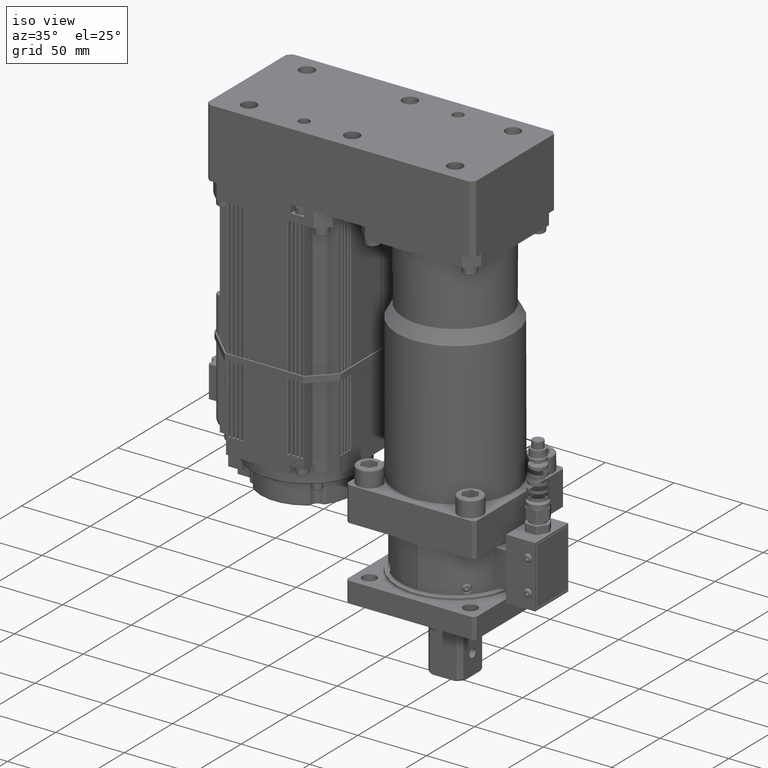
[diagram: clean part render]
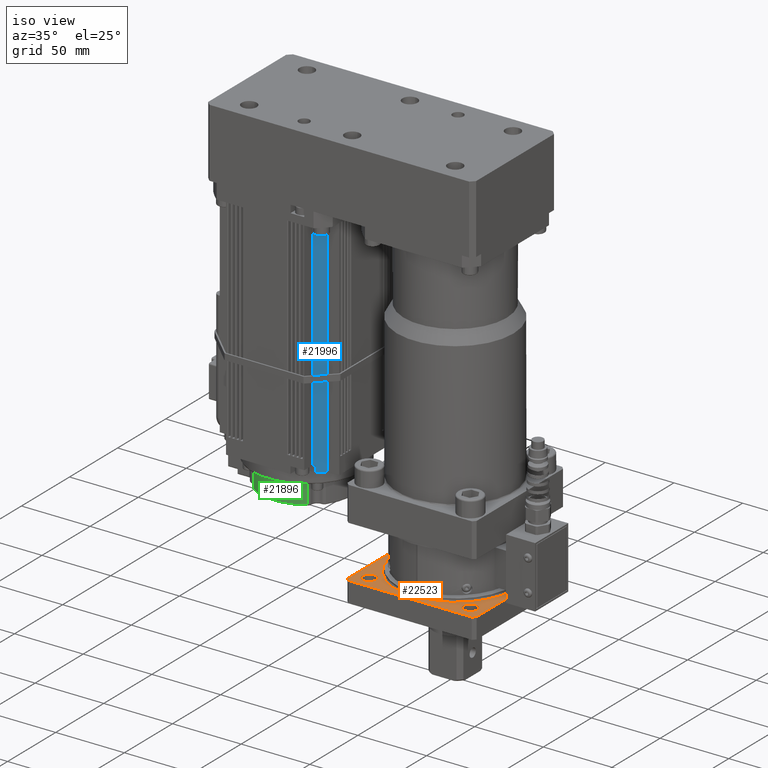
[diagram: same view with three faces highlighted in distinct colors, each labeled with its STEP entity id]
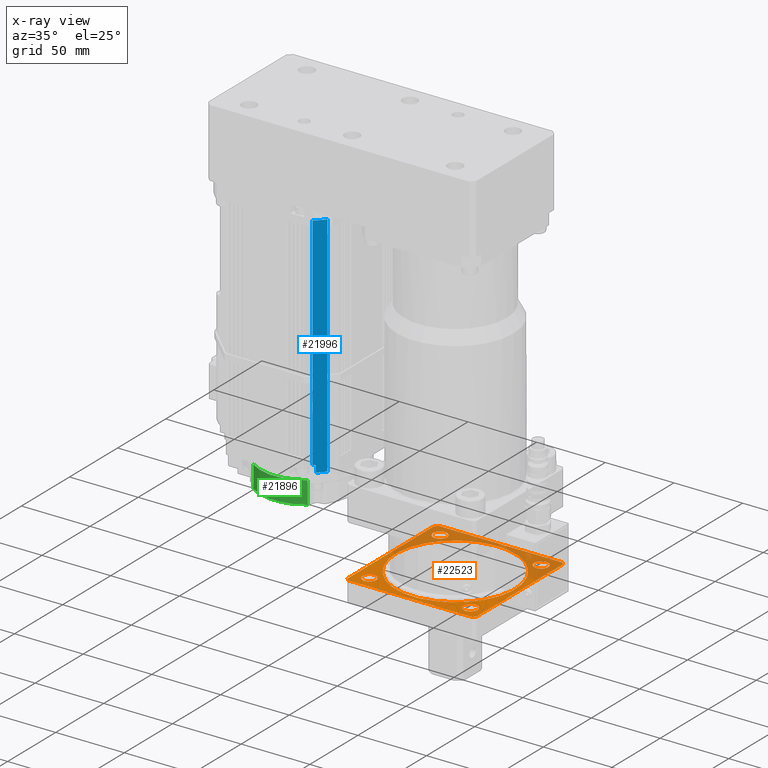
[diagram: x-ray of the same camera — body ghosted, the three highlighted faces saturated]
A machine part, iso view with three faces highlighted in distinct colors.
The next image is the same camera in x-ray (body ghosted, the three faces saturated) — at least one of them is partly hidden behind the body in this view.
Their STEP definitions:

[orange] entity #22523 — the highlighted planar face has unit normal (-0, -0, 1).
#387=FACE_BOUND('',#7877,.T.);
#388=FACE_BOUND('',#7878,.T.);
#389=FACE_BOUND('',#7879,.T.);
#390=FACE_BOUND('',#7880,.T.);
#391=FACE_BOUND('',#7881,.T.);
#1055=PLANE('',#24587);
#3061=LINE('',#37342,#5035);
#3062=LINE('',#37346,#5036);
#3063=LINE('',#37350,#5037);
#3064=LINE('',#37354,#5038);
#5035=VECTOR('',#30438,10.);
#5036=VECTOR('',#30441,10.);
#5037=VECTOR('',#30444,10.);
#5038=VECTOR('',#30447,10.);
#6558=FACE_OUTER_BOUND('',#7876,.T.);
#7876=EDGE_LOOP('',(#19654,#19655,#19656,#19657,#19658,#19659,#19660,#19661));
#7877=EDGE_LOOP('',(#19662));
#7878=EDGE_LOOP('',(#19663));
#7879=EDGE_LOOP('',(#19664));
#7880=EDGE_LOOP('',(#19665));
#7881=EDGE_LOOP('',(#19666));
#8863=CIRCLE('',#24583,43.5);
#8866=CIRCLE('',#24588,65.);
#8867=CIRCLE('',#24589,65.);
#8868=CIRCLE('',#24590,65.);
#8869=CIRCLE('',#24591,65.);
#8870=CIRCLE('',#24592,5.125);
#8871=CIRCLE('',#24593,5.125);
#8872=CIRCLE('',#24594,5.125);
#8873=CIRCLE('',#24595,5.125);
#10784=VERTEX_POINT('',#37331);
#10786=VERTEX_POINT('',#37340);
#10787=VERTEX_POINT('',#37341);
#10788=VERTEX_POINT('',#37343);
#10789=VERTEX_POINT('',#37345);
#10790=VERTEX_POINT('',#37347);
#10791=VERTEX_POINT('',#37349);
#10792=VERTEX_POINT('',#37351);
#10793=VERTEX_POINT('',#37353);
#10794=VERTEX_POINT('',#37356);
#10795=VERTEX_POINT('',#37358);
#10796=VERTEX_POINT('',#37360);
#10797=VERTEX_POINT('',#37362);
#13781=EDGE_CURVE('',#10784,#10784,#8863,.T.);
#13785=EDGE_CURVE('',#10786,#10787,#3061,.T.);
#13786=EDGE_CURVE('',#10788,#10787,#8866,.T.);
#13787=EDGE_CURVE('',#10788,#10789,#3062,.T.);
#13788=EDGE_CURVE('',#10790,#10789,#8867,.T.);
#13789=EDGE_CURVE('',#10790,#10791,#3063,.T.);
#13790=EDGE_CURVE('',#10792,#10791,#8868,.T.);
#13791=EDGE_CURVE('',#10792,#10793,#3064,.T.);
#13792=EDGE_CURVE('',#10786,#10793,#8869,.T.);
#13793=EDGE_CURVE('',#10794,#10794,#8870,.T.);
#13794=EDGE_CURVE('',#10795,#10795,#8871,.T.);
#13795=EDGE_CURVE('',#10796,#10796,#8872,.T.);
#13796=EDGE_CURVE('',#10797,#10797,#8873,.T.);
#19654=ORIENTED_EDGE('',*,*,#13785,.T.);
#19655=ORIENTED_EDGE('',*,*,#13786,.F.);
#19656=ORIENTED_EDGE('',*,*,#13787,.T.);
#19657=ORIENTED_EDGE('',*,*,#13788,.F.);
#19658=ORIENTED_EDGE('',*,*,#13789,.T.);
#19659=ORIENTED_EDGE('',*,*,#13790,.F.);
#19660=ORIENTED_EDGE('',*,*,#13791,.T.);
#19661=ORIENTED_EDGE('',*,*,#13792,.F.);
#19662=ORIENTED_EDGE('',*,*,#13793,.T.);
#19663=ORIENTED_EDGE('',*,*,#13794,.T.);
#19664=ORIENTED_EDGE('',*,*,#13795,.T.);
#19665=ORIENTED_EDGE('',*,*,#13796,.T.);
#19666=ORIENTED_EDGE('',*,*,#13781,.F.);
#22523=ADVANCED_FACE('',(#6558,#387,#388,#389,#390,#391),#1055,.T.);
#24583=AXIS2_PLACEMENT_3D('',#37333,#30427,#30428);
#24587=AXIS2_PLACEMENT_3D('',#37339,#30436,#30437);
#24588=AXIS2_PLACEMENT_3D('',#37344,#30439,#30440);
#24589=AXIS2_PLACEMENT_3D('',#37348,#30442,#30443);
#24590=AXIS2_PLACEMENT_3D('',#37352,#30445,#30446);
#24591=AXIS2_PLACEMENT_3D('',#37355,#30448,#30449);
#24592=AXIS2_PLACEMENT_3D('',#37357,#30450,#30451);
#24593=AXIS2_PLACEMENT_3D('',#37359,#30452,#30453);
#24594=AXIS2_PLACEMENT_3D('',#37361,#30454,#30455);
#24595=AXIS2_PLACEMENT_3D('',#37363,#30456,#30457);
#30427=DIRECTION('center_axis',(-5.9693332104316E-16,-2.04895557754938E-16,
1.));
#30428=DIRECTION('ref_axis',(0.707106781186548,0.707106781186547,5.66978637549342E-16));
#30436=DIRECTION('center_axis',(-5.9693332104316E-16,-2.04895557754938E-16,
1.));
#30437=DIRECTION('ref_axis',(-0.707106781186547,0.707106781186548,-2.77212560902308E-16));
#30438=DIRECTION('',(-1.11022302462516E-16,-1.,-2.04895557754938E-16));
#30439=DIRECTION('center_axis',(5.9693332104316E-16,2.04895557754938E-16,
-1.));
#30440=DIRECTION('ref_axis',(0.707106781186547,-0.707106781186548,2.77212560902308E-16));
#30441=DIRECTION('',(1.,1.11022302462516E-16,5.9693332104316E-16));
#30442=DIRECTION('center_axis',(5.9693332104316E-16,2.04895557754938E-16,
-1.));
#30443=DIRECTION('ref_axis',(0.707106781186547,-0.707106781186548,2.77212560902308E-16));
#30444=DIRECTION('',(1.11022302462516E-16,1.,2.04895557754938E-16));
#30445=DIRECTION('center_axis',(5.9693332104316E-16,2.04895557754938E-16,
-1.));
#30446=DIRECTION('ref_axis',(0.707106781186547,-0.707106781186548,2.77212560902308E-16));
#30447=DIRECTION('',(-1.,-1.11022302462516E-16,-5.9693332104316E-16));
#30448=DIRECTION('center_axis',(5.9693332104316E-16,2.04895557754938E-16,
-1.));
#30449=DIRECTION('ref_axis',(0.707106781186547,-0.707106781186548,2.77212560902308E-16));
#30450=DIRECTION('center_axis',(5.9693332104316E-16,2.04895557754938E-16,
-1.));
#30451=DIRECTION('ref_axis',(1.,-1.08314441426845E-16,5.9693332104316E-16));
#30452=DIRECTION('center_axis',(5.9693332104316E-16,2.04895557754938E-16,
-1.));
#30453=DIRECTION('ref_axis',(-1.08314441426845E-16,-1.,-2.04895557754938E-16));
#30454=DIRECTION('center_axis',(5.9693332104316E-16,2.04895557754938E-16,
-1.));
#30455=DIRECTION('ref_axis',(-1.,1.08314441426845E-16,-5.9693332104316E-16));
#30456=DIRECTION('center_axis',(5.9693332104316E-16,2.04895557754938E-16,
-1.));
#30457=DIRECTION('ref_axis',(0.,1.,2.04895557754938E-16));
#37331=CARTESIAN_POINT('',(-77.7591449816147,77.7591449816148,15.));
#37333=CARTESIAN_POINT('Origin',(-46.9999999999999,47.,15.));
#37339=CARTESIAN_POINT('Origin',(-92.9619407771255,1.03805922287442,14.9999999999999));
#37340=CARTESIAN_POINT('',(-93.9999999999999,91.8998886412873,15.));
#37341=CARTESIAN_POINT('',(-93.9999999999999,2.10011135871273,14.9999999999999));
#37342=CARTESIAN_POINT('',(-93.9999999999999,46.4689739320809,15.));
#37343=CARTESIAN_POINT('',(-91.8998886412872,-2.66453525910038E-14,14.9999999999999));
#37344=CARTESIAN_POINT('Origin',(-46.9999999999999,47.,15.));
#37345=CARTESIAN_POINT('',(-2.10011135871267,-1.77635683940025E-14,15.));
#37346=CARTESIAN_POINT('',(-92.4309147092064,-1.77635683940025E-14,14.9999999999999));
#37347=CARTESIAN_POINT('',(4.44089209850063E-14,2.10011135871271,15.));
#37348=CARTESIAN_POINT('Origin',(-46.9999999999999,47.,15.));
#37349=CARTESIAN_POINT('',(6.21724893790088E-14,91.8998886412873,15.));
#37350=CARTESIAN_POINT('',(5.32907051820075E-14,1.56908529079355,15.));
#37351=CARTESIAN_POINT('',(-2.10011135871267,94.,15.));
#37352=CARTESIAN_POINT('Origin',(-46.9999999999999,47.,15.));
#37353=CARTESIAN_POINT('',(-91.8998886412872,94.,15.));
#37354=CARTESIAN_POINT('',(-47.5310260679191,94.,15.));
#37355=CARTESIAN_POINT('Origin',(-46.9999999999999,47.,15.));
#37356=CARTESIAN_POINT('',(-88.8945526217004,10.2304473782995,14.9999999999999));
#37357=CARTESIAN_POINT('Origin',(-83.7695526217004,10.2304473782995,15.));
#37358=CARTESIAN_POINT('',(-83.7695526217004,88.8945526217005,15.));
#37359=CARTESIAN_POINT('Origin',(-83.7695526217004,83.7695526217005,15.));
#37360=CARTESIAN_POINT('',(-5.10544737829948,83.7695526217005,15.));
#37361=CARTESIAN_POINT('Origin',(-10.2304473782995,83.7695526217005,15.));
#37362=CARTESIAN_POINT('',(-10.2304473782995,5.10544737829954,15.));
#37363=CARTESIAN_POINT('Origin',(-10.2304473782995,10.2304473782995,15.));

[blue] entity #21996 — the highlighted cylindrical surface (partial cylindrical patch) has radius 45 mm, axis along (-0, 0, 1).
#1591=LINE('',#31885,#3565);
#2339=LINE('',#34121,#4313);
#2360=LINE('',#34167,#4334);
#2361=LINE('',#34170,#4335);
#3565=VECTOR('',#25494,10.);
#4313=VECTOR('',#27764,10.);
#4334=VECTOR('',#27813,10.);
#4335=VECTOR('',#27818,10.);
#5326=CYLINDRICAL_SURFACE('',#23626,45.);
#6031=FACE_OUTER_BOUND('',#7235,.T.);
#7235=EDGE_LOOP('',(#17042,#17043,#17044,#17045,#17046,#17047,#17048,#17049,
#17050));
#8051=CIRCLE('',#22728,45.);
#8053=CIRCLE('',#22730,45.);
#8441=CIRCLE('',#23614,45.);
#8444=CIRCLE('',#23627,45.);
#8970=VERTEX_POINT('',#31037);
#8971=VERTEX_POINT('',#31039);
#9000=VERTEX_POINT('',#31116);
#9001=VERTEX_POINT('',#31120);
#9282=VERTEX_POINT('',#31884);
#9952=VERTEX_POINT('',#34118);
#9953=VERTEX_POINT('',#34120);
#9954=VERTEX_POINT('',#34125);
#11010=EDGE_CURVE('',#8970,#9000,#8051,.T.);
#11012=EDGE_CURVE('',#9001,#8970,#8053,.T.);
#11413=EDGE_CURVE('',#9282,#9001,#1591,.T.);
#12502=EDGE_CURVE('',#9953,#9952,#2339,.T.);
#12504=EDGE_CURVE('',#9954,#9953,#8441,.T.);
#12526=EDGE_CURVE('',#9954,#9000,#2360,.T.);
#12527=EDGE_CURVE('',#9282,#9952,#8444,.T.);
#12528=EDGE_CURVE('',#8971,#8970,#2361,.T.);
#17042=ORIENTED_EDGE('',*,*,#12504,.T.);
#17043=ORIENTED_EDGE('',*,*,#12502,.T.);
#17044=ORIENTED_EDGE('',*,*,#12527,.F.);
#17045=ORIENTED_EDGE('',*,*,#11413,.T.);
#17046=ORIENTED_EDGE('',*,*,#11012,.T.);
#17047=ORIENTED_EDGE('',*,*,#12528,.F.);
#17048=ORIENTED_EDGE('',*,*,#12528,.T.);
#17049=ORIENTED_EDGE('',*,*,#11010,.T.);
#17050=ORIENTED_EDGE('',*,*,#12526,.F.);
#21996=ADVANCED_FACE('',(#6031),#5326,.T.);
#22728=AXIS2_PLACEMENT_3D('',#31118,#24904,#24905);
#22730=AXIS2_PLACEMENT_3D('',#31121,#24908,#24909);
#23614=AXIS2_PLACEMENT_3D('',#34126,#27770,#27771);
#23626=AXIS2_PLACEMENT_3D('',#34168,#27814,#27815);
#23627=AXIS2_PLACEMENT_3D('',#34169,#27816,#27817);
#24904=DIRECTION('center_axis',(6.48565444501562E-16,-2.95829408546839E-29,
-1.));
#24905=DIRECTION('ref_axis',(-0.773879117749591,0.633333333333337,-5.01911253993759E-16));
#24908=DIRECTION('center_axis',(6.48565444501562E-16,-2.95829408546839E-29,
-1.));
#24909=DIRECTION('ref_axis',(-0.773879117749591,0.633333333333337,-5.01911253993759E-16));
#25494=DIRECTION('',(-6.48565444501562E-16,2.95829408546839E-29,1.));
#27764=DIRECTION('',(6.48565444501562E-16,-2.95829408546839E-29,-1.));
#27770=DIRECTION('center_axis',(-6.48565444501562E-16,2.95829408546839E-29,
1.));
#27771=DIRECTION('ref_axis',(-0.773879117749591,0.633333333333337,-5.01911253993759E-16));
#27813=DIRECTION('',(-6.48565444501562E-16,2.95829408546839E-29,1.));
#27814=DIRECTION('center_axis',(-6.48565444501562E-16,2.95829408546839E-29,
1.));
#27815=DIRECTION('ref_axis',(-0.773879117749591,0.633333333333337,-5.01911253993759E-16));
#27816=DIRECTION('center_axis',(6.48565444501562E-16,-2.95829408546839E-29,
-1.));
#27817=DIRECTION('ref_axis',(-0.773879117749591,0.633333333333337,-5.01911253993759E-16));
#27818=DIRECTION('',(-6.48565444501562E-16,2.95829408546839E-29,1.));
#31037=CARTESIAN_POINT('',(-123.180194846606,15.1801948466058,238.));
#31039=CARTESIAN_POINT('',(-123.180194846606,15.1801948466058,232.6));
#31116=CARTESIAN_POINT('',(-126.500000000001,12.1754397012687,238.));
#31118=CARTESIAN_POINT('Origin',(-155.000000000001,47.0000000000005,238.));
#31120=CARTESIAN_POINT('',(-120.175439701269,18.5000000000003,238.));
#31121=CARTESIAN_POINT('Origin',(-155.000000000001,47.0000000000005,238.));
#31884=CARTESIAN_POINT('',(-120.175439701269,18.5000000000003,72.0000000000002));
#31885=CARTESIAN_POINT('',(-120.175439701269,18.5000000000003,72.0000000000002));
#34118=CARTESIAN_POINT('',(-124.954201624854,13.5000000000003,72.0000000000002));
#34120=CARTESIAN_POINT('',(-124.954201624854,13.5000000000003,77.0000000000002));
#34121=CARTESIAN_POINT('',(-124.954201624854,13.5000000000003,72.0000000000002));
#34125=CARTESIAN_POINT('',(-126.500000000001,12.1754397012687,77.0000000000002));
#34126=CARTESIAN_POINT('Origin',(-155.000000000001,47.0000000000005,77.0000000000002));
#34167=CARTESIAN_POINT('',(-126.500000000001,12.1754397012687,72.0000000000002));
#34168=CARTESIAN_POINT('Origin',(-155.000000000001,47.0000000000005,72.0000000000002));
#34169=CARTESIAN_POINT('Origin',(-155.000000000001,47.0000000000005,72.0000000000002));
#34170=CARTESIAN_POINT('',(-123.180194846606,15.1801948466057,72.0000000000002));

[green] entity #21896 — the highlighted cylindrical surface (partial cylindrical patch) has radius 34 mm, axis along (0, -0, -1).
#2189=LINE('',#33687,#4163);
#2190=LINE('',#33691,#4164);
#4163=VECTOR('',#27308,10.);
#4164=VECTOR('',#27313,10.);
#5300=CYLINDRICAL_SURFACE('',#23460,34.);
#5931=FACE_OUTER_BOUND('',#7122,.T.);
#7122=EDGE_LOOP('',(#16536,#16537,#16538,#16539));
#8356=CIRCLE('',#23426,34.);
#8378=CIRCLE('',#23461,34.);
#9798=VERTEX_POINT('',#33611);
#9800=VERTEX_POINT('',#33617);
#9822=VERTEX_POINT('',#33686);
#9823=VERTEX_POINT('',#33690);
#12255=EDGE_CURVE('',#9798,#9800,#8356,.T.);
#12288=EDGE_CURVE('',#9800,#9822,#2189,.T.);
#12290=EDGE_CURVE('',#9823,#9798,#2190,.T.);
#12291=EDGE_CURVE('',#9822,#9823,#8378,.T.);
#16536=ORIENTED_EDGE('',*,*,#12255,.F.);
#16537=ORIENTED_EDGE('',*,*,#12290,.F.);
#16538=ORIENTED_EDGE('',*,*,#12291,.F.);
#16539=ORIENTED_EDGE('',*,*,#12288,.F.);
#21896=ADVANCED_FACE('',(#5931),#5300,.T.);
#23426=AXIS2_PLACEMENT_3D('',#33621,#27230,#27231);
#23460=AXIS2_PLACEMENT_3D('',#33689,#27311,#27312);
#23461=AXIS2_PLACEMENT_3D('',#33692,#27314,#27315);
#27230=DIRECTION('center_axis',(6.48565444501562E-16,-2.95829408546839E-29,
-1.));
#27231=DIRECTION('ref_axis',(-4.06211012539323E-15,-1.,2.6948396595594E-29));
#27308=DIRECTION('',(-6.48565444501562E-16,2.95829408546839E-29,1.));
#27311=DIRECTION('center_axis',(6.48565444501562E-16,-2.95829408546839E-29,
-1.));
#27312=DIRECTION('ref_axis',(0.626301092818847,-0.779581260122328,4.06197246655893E-16));
#27313=DIRECTION('',(6.48565444501562E-16,-2.95829408546839E-29,-1.));
#27314=DIRECTION('center_axis',(-6.48565444501562E-16,2.95829408546839E-29,
1.));
#27315=DIRECTION('ref_axis',(0.626301092818847,-0.779581260122328,4.06197246655893E-16));
#33611=CARTESIAN_POINT('',(-135.25369925772,19.3217846132492,46.0000000000002));
#33617=CARTESIAN_POINT('',(-174.746300742282,19.3217846132494,46.0000000000002));
#33621=CARTESIAN_POINT('Origin',(-155.000000000001,47.0000000000005,46.0000000000002));
#33686=CARTESIAN_POINT('',(-174.746300742282,19.3217846132494,62.0000000000002));
#33687=CARTESIAN_POINT('',(-174.746300742282,19.3217846132494,62.0000000000002));
#33689=CARTESIAN_POINT('Origin',(-155.000000000001,47.0000000000005,62.0000000000002));
#33690=CARTESIAN_POINT('',(-135.25369925772,19.3217846132492,62.0000000000002));
#33691=CARTESIAN_POINT('',(-135.25369925772,19.3217846132492,62.0000000000002));
#33692=CARTESIAN_POINT('Origin',(-155.000000000001,47.0000000000005,62.0000000000002));